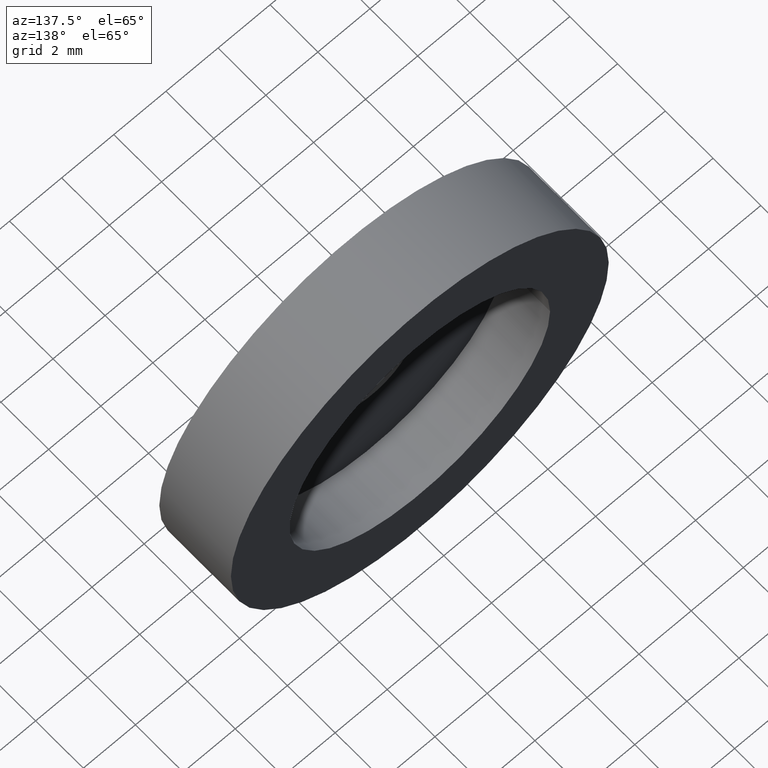
[diagram: clean part render]
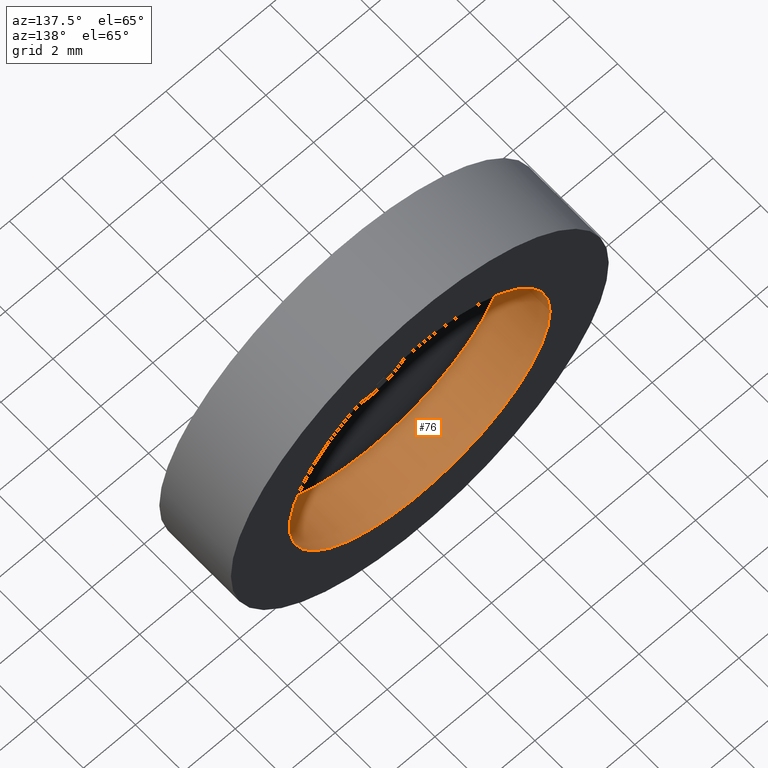
[diagram: same view with one face highlighted and labeled with its STEP entity id]
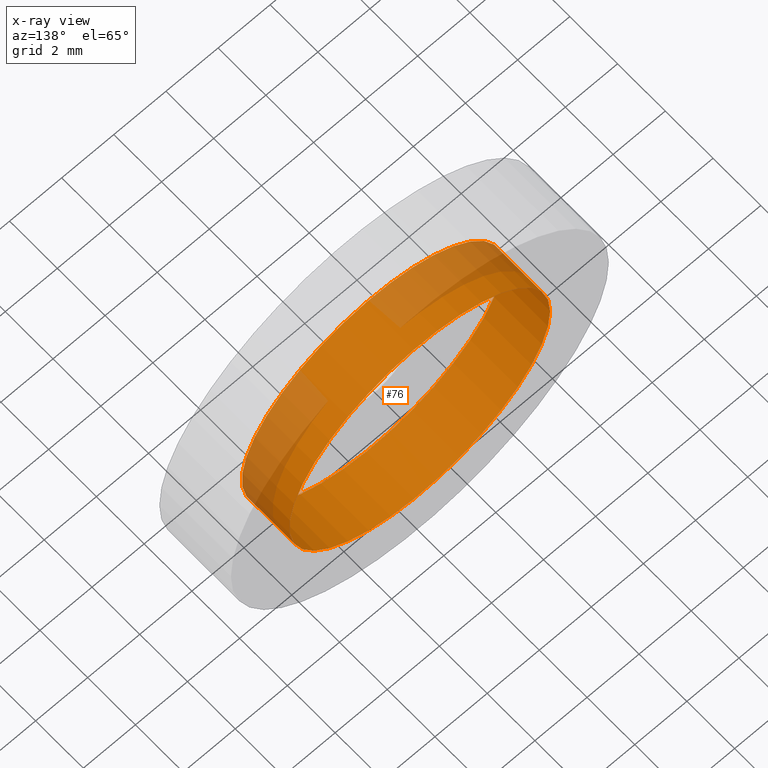
[diagram: x-ray of the same camera — body ghosted, the highlighted face saturated]
A machine part, auxiliary view. The second image highlights one B-rep face of the part: STEP entity #76.
The next image is the same camera in x-ray: the body ghosted, the highlighted face saturated — about 23% of this face is hidden behind the body in this view.
In plain terms, the highlighted cylindrical surface (bore or boss wall) has radius 5 mm, axis along (0, 1, 0).
Its self-contained STEP definition (entity closure, byte-faithful):
#15=CYLINDRICAL_SURFACE('',#86,5.);
#19=FACE_BOUND('',#33,.T.);
#25=FACE_OUTER_BOUND('',#32,.T.);
#32=EDGE_LOOP('',(#62));
#33=EDGE_LOOP('',(#63));
#42=CIRCLE('',#84,5.);
#44=CIRCLE('',#87,5.);
#48=VERTEX_POINT('',#123);
#50=VERTEX_POINT('',#128);
#54=EDGE_CURVE('',#48,#48,#42,.T.);
#56=EDGE_CURVE('',#50,#50,#44,.T.);
#62=ORIENTED_EDGE('',*,*,#56,.F.);
#63=ORIENTED_EDGE('',*,*,#54,.F.);
#76=ADVANCED_FACE('',(#25,#19),#15,.F.);
#84=AXIS2_PLACEMENT_3D('',#124,#99,#100);
#86=AXIS2_PLACEMENT_3D('',#127,#103,#104);
#87=AXIS2_PLACEMENT_3D('',#129,#105,#106);
#99=DIRECTION('center_axis',(0.,1.,0.));
#100=DIRECTION('ref_axis',(-1.,0.,0.));
#103=DIRECTION('center_axis',(0.,1.,0.));
#104=DIRECTION('ref_axis',(-1.,0.,0.));
#105=DIRECTION('center_axis',(0.,-1.,0.));
#106=DIRECTION('ref_axis',(-1.,0.,0.));
#123=CARTESIAN_POINT('',(-5.,1.,0.));
#124=CARTESIAN_POINT('Origin',(0.,1.,0.));
#127=CARTESIAN_POINT('Origin',(0.,2.,0.));
#128=CARTESIAN_POINT('',(-5.,3.,0.));
#129=CARTESIAN_POINT('Origin',(0.,3.,0.));